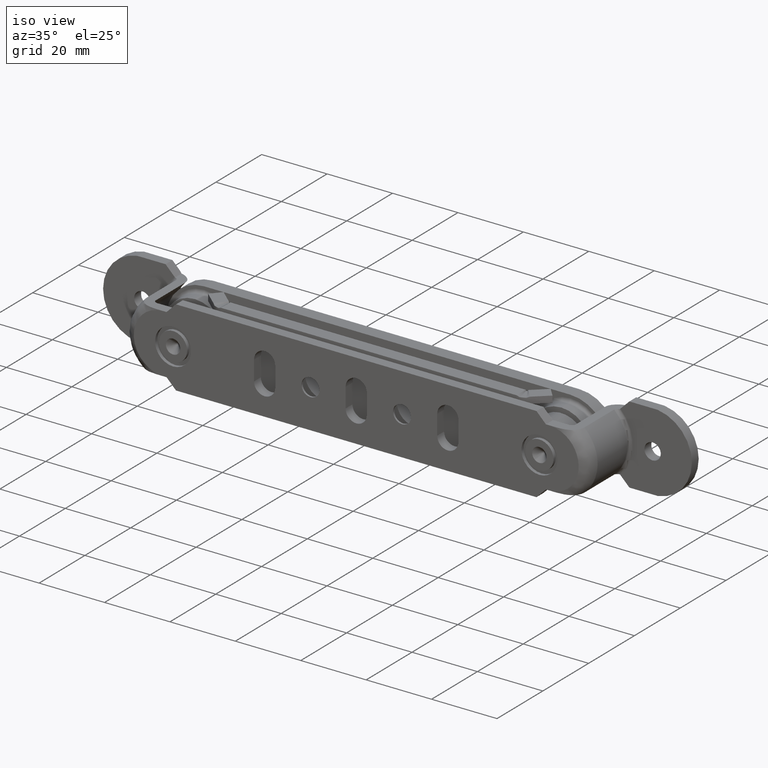
[diagram: clean part render]
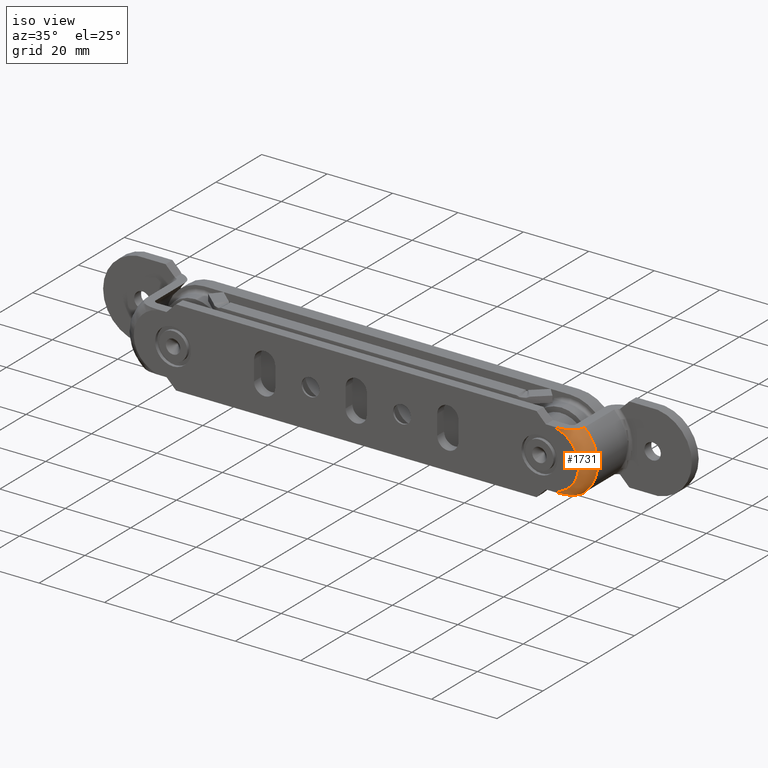
[diagram: same view with one face highlighted and labeled with its STEP entity id]
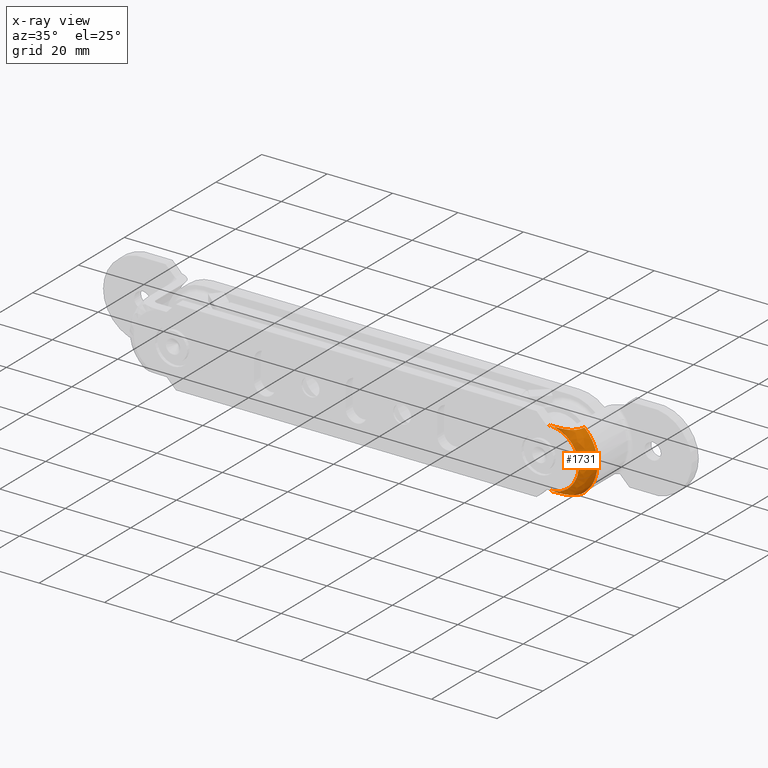
[diagram: x-ray of the same camera — body ghosted, the highlighted face saturated]
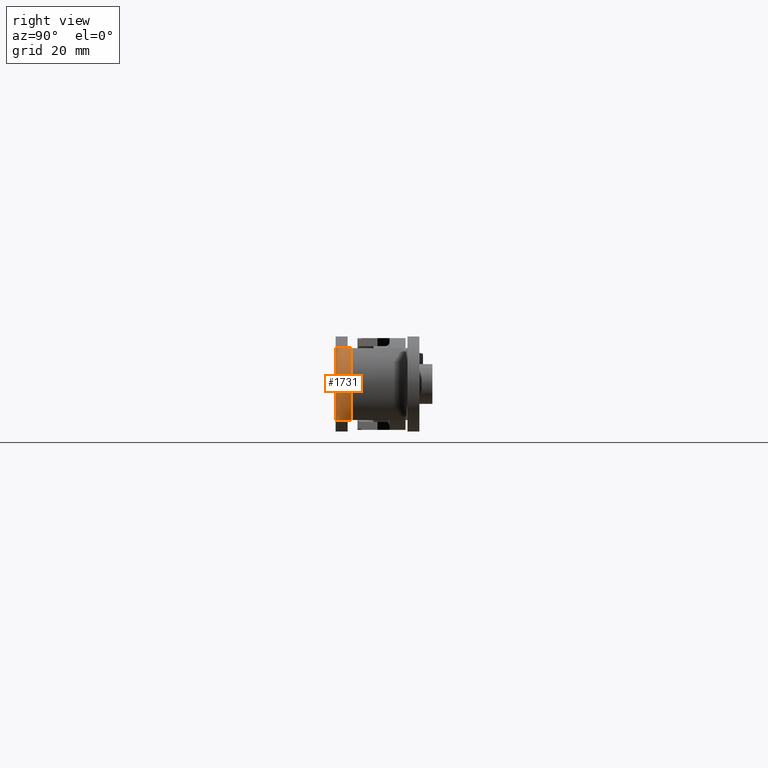
[diagram: same view with one face highlighted and labeled with its STEP entity id]
A machine part, iso view. The second image highlights one B-rep face of the part: STEP entity #1731.
The next image is the same camera in x-ray: the body ghosted, the highlighted face saturated — about 0% of this face is hidden behind the body in this view.
A second angle (right view) of the same face is appended — the face is thin or edge-on in the first view.
In plain terms, the highlighted face is a freeform B-spline surface patch.
Its self-contained STEP definition (entity closure, byte-faithful):
#2 = VERTEX_POINT ( 'NONE', #5579 ) ;
#150 = CARTESIAN_POINT ( 'NONE',  ( 58.82983901466672449, 3.999999999999997335, -12.12263065702895481 ) ) ;
#238 = CARTESIAN_POINT ( 'NONE',  ( 60.19571160249375197, 0.000000000000000000, -9.013858698171871353 ) ) ;
#284 = CARTESIAN_POINT ( 'NONE',  ( 60.19571160249827102, 0.000000000000000000, 9.013858698171862471 ) ) ;
#334 = CARTESIAN_POINT ( 'NONE',  ( 66.86148265535459245, 3.161314814079910551, 8.999999999999968026 ) ) ;
#358 = CARTESIAN_POINT ( 'NONE',  ( 66.63074449377211295, 2.063901716710476627E-26, -4.944806703775358692 ) ) ;
#361 = B_SPLINE_CURVE_WITH_KNOTS ( 'NONE', 3,
 ( #4771, #7583, #2633, #3354, #613, #6899, #1206, #6758, #3312, #6127 ),
 .UNSPECIFIED., .F., .F.,
 ( 4, 2, 2, 2, 4 ),
 ( 0.000000000000000000, 0.2453195675377440876, 0.4999994024118706859, 0.7546792372859972842, 1.000000000000000000 ),
 .UNSPECIFIED. ) ;
#380 = CARTESIAN_POINT ( 'NONE',  ( 66.24152541394676064, 1.895858301874878471, 9.000015595902709720 ) ) ;
#445 = CARTESIAN_POINT ( 'NONE',  ( 68.00000000000032685, 2.063901716710476627E-26, 1.295906966939364358 ) ) ;
#470 = CARTESIAN_POINT ( 'NONE',  ( 66.39133890173248176, 2.112523196620436305, 9.000037664157138906 ) ) ;
#492 = CARTESIAN_POINT ( 'NONE',  ( 59.82218478080638135, -1.249353701446252122E-25, 8.999328210712842946 ) ) ;
#546 = CARTESIAN_POINT ( 'NONE',  ( 63.46197034889392086, 0.2503412271829894009, -8.999903584306439441 ) ) ;
#599 = CARTESIAN_POINT ( 'NONE',  ( 66.93725038335081479, 4.000000000000000000, -8.999995976618132332 ) ) ;
#613 = CARTESIAN_POINT ( 'NONE',  ( 70.99999999999998579, 3.999999999999995559, -1.727875955919077056 ) ) ;
#630 = CARTESIAN_POINT ( 'NONE',  ( 63.56388258241338463, 0.2735179203882437404, -8.999921461395892663 ) ) ;
#647 = EDGE_CURVE ( 'NONE', #2644, #2, #6600, .T. ) ;
#675 = CARTESIAN_POINT ( 'NONE',  ( 61.90593974958166257, 0.04233087583990526731, -9.000000000000007105 ) ) ;
#736 = CARTESIAN_POINT ( 'NONE',  ( 60.59428213665757568, 3.999999999999997335, -12.01847826423136567 ) ) ;
#775 = CARTESIAN_POINT ( 'NONE',  ( 71.00000000000001421, 3.999999999999997335, -1.727875955919077056 ) ) ;
#829 = CARTESIAN_POINT ( 'NONE',  ( 62.69021649507758553, 0.000000000000000000, -8.310335557993781208 ) ) ;
#870 = CARTESIAN_POINT ( 'NONE',  ( 58.82983901466401022, 3.999999999999997335, 12.12263065702852494 ) ) ;
#917 = CARTESIAN_POINT ( 'NONE',  ( 65.47948939527414325, -5.620100607150930550E-13, 10.24703725452932090 ) ) ;
#968 = CARTESIAN_POINT ( 'NONE',  ( 63.85961704645559678, 0.000000000000000000, 7.685277940896432902 ) ) ;
#980 = CARTESIAN_POINT ( 'NONE',  ( 63.56483970053491817, 0.2605829227670746207, 8.999999999999996447 ) ) ;
#1022 = CARTESIAN_POINT ( 'NONE',  ( 62.00791992676006004, 0.05320393769206185203, 8.999915259068584916 ) ) ;
#1040 = CARTESIAN_POINT ( 'NONE',  ( 60.64802684624405060, -5.213595563390065040E-26, 8.886292606168257890 ) ) ;
#1083 = CARTESIAN_POINT ( 'NONE',  ( 58.99627897886159644, 0.000000000000000000, 8.999832052678133465 ) ) ;
#1171 = CARTESIAN_POINT ( 'NONE',  ( 62.69021649507326543, 1.348225810565946769E-25, 8.310335557994054767 ) ) ;
#1206 = CARTESIAN_POINT ( 'NONE',  ( 70.62111018010490682, 3.999999999999995559, 3.454758095861153677 ) ) ;
#1220 = CARTESIAN_POINT ( 'NONE',  ( 60.64802684624113738, 9.359021182132724620E-26, -8.886292606168272101 ) ) ;
#1223 = CARTESIAN_POINT ( 'NONE',  ( 60.64744844372212640, 0.004410451363088241025, -8.999516341959141741 ) ) ;
#1316 = CARTESIAN_POINT ( 'NONE',  ( 61.28000420135872162, 0.01794271512403050606, -8.999941810766777905 ) ) ;
#1443 = CARTESIAN_POINT ( 'NONE',  ( 66.93725038335081479, 4.000000000000000000, -8.999995976618132332 ) ) ;
#1462 = CARTESIAN_POINT ( 'NONE',  ( 70.62111018010314467, 0.000000000000000000, -3.454758095863973200 ) ) ;
#1506 = CARTESIAN_POINT ( 'NONE',  ( 63.92028866010046073, -1.122285397954208091E-12, -11.08044741065987004 ) ) ;
#1550 = CARTESIAN_POINT ( 'NONE',  ( 60.59428213666134155, 1.125754844906160898E-12, -12.01847826422765486 ) ) ;
#1644 = CARTESIAN_POINT ( 'NONE',  ( 66.63074449377185715, 0.000000000000000000, 4.944806703775151746 ) ) ;
#1657 = CARTESIAN_POINT ( 'NONE',  ( 61.90467792480876597, 0.04639041758854967751, 8.999931933158798358 ) ) ;
#1731 = ADVANCED_FACE ( 'NONE', ( #6975 ), #2895, .F. ) ;
#1740 = CARTESIAN_POINT ( 'NONE',  ( 63.15412727634170409, 0.1802346272111595427, 9.000000000000000000 ) ) ;
#1784 = ORIENTED_EDGE ( 'NONE', *, *, #1859, .T. ) ;
#1827 = EDGE_CURVE ( 'NONE', #2350, #5560, #361, .T. ) ;
#1859 = EDGE_CURVE ( 'NONE', #5560, #2644, #3805, .T. ) ;
#1893 = CARTESIAN_POINT ( 'NONE',  ( 58.99627897886185224, 0.000000000000000000, -9.000000000000001776 ) ) ;
#1895 = CARTESIAN_POINT ( 'NONE',  ( 62.94730166962835227, 0.1531425506540319836, -9.000000000000000000 ) ) ;
#2034 = CARTESIAN_POINT ( 'NONE',  ( 64.38635201963586496, 0.5102501756586628190, -9.000000000000001776 ) ) ;
#2074 = CARTESIAN_POINT ( 'NONE',  ( 60.43957559562711879, 0.002616476629980539481, -8.999428771149760919 ) ) ;
#2141 = CARTESIAN_POINT ( 'NONE',  ( 65.47948939527029211, 3.999999999999997335, 10.24703725452369696 ) ) ;
#2180 = CARTESIAN_POINT ( 'NONE',  ( 63.92028866010422661, 3.999999999999997335, -11.08044741065616812 ) ) ;
#2219 = CARTESIAN_POINT ( 'NONE',  ( 66.63074449377184294, 0.000000000000000000, -4.944806703775191714 ) ) ;
#2247 = CARTESIAN_POINT ( 'NONE',  ( 66.21340521418400726, 1.848980551975219155, -9.000000000000000000 ) ) ;
#2271 = CARTESIAN_POINT ( 'NONE',  ( 71.00000000000000000, 0.000000000000000000, 1.727875955919093043 ) ) ;
#2313 = CARTESIAN_POINT ( 'NONE',  ( 65.83044782348767399, 0.000000000000000000, 6.002029439904141839 ) ) ;
#2324 = CARTESIAN_POINT ( 'NONE',  ( 64.37611568199751844, 0.5226060553400028175, 8.999772213244277452 ) ) ;
#2350 = VERTEX_POINT ( 'NONE', #599 ) ;
#2415 = CARTESIAN_POINT ( 'NONE',  ( 64.47574860772574823, 0.5624062415973377638, 8.999674028431057238 ) ) ;
#2431 = CARTESIAN_POINT ( 'NONE',  ( 59.82218478080559976, 7.352724279412131273E-26, -8.999328210713068543 ) ) ;
#2455 = CARTESIAN_POINT ( 'NONE',  ( 62.31832493353043390, 0.07717258691542608351, 8.999912941978918113 ) ) ;
#2490 = CARTESIAN_POINT ( 'NONE',  ( 61.06310189977546088, 0.008220459339664863349, 9.000000000000007105 ) ) ;
#2562 = CARTESIAN_POINT ( 'NONE',  ( 65.83044782348788715, 7.773079911184959099E-26, 6.002029439904346120 ) ) ;
#2606 = CARTESIAN_POINT ( 'NONE',  ( 65.48152720571420105, 1.125003158610532905, -8.999520116823067184 ) ) ;
#2633 = CARTESIAN_POINT ( 'NONE',  ( 69.20091287634160437, 3.999999999999995559, -6.535404194011755763 ) ) ;
#2644 = VERTEX_POINT ( 'NONE', #4700 ) ;
#2699 = CARTESIAN_POINT ( 'NONE',  ( 63.79159592698542269, 0.3317827886161272555, -8.999977441642196041 ) ) ;
#2810 = CARTESIAN_POINT ( 'NONE',  ( 69.17432599169836749, 3.999999999999997335, -6.593075605034147912 ) ) ;
#2852 = CARTESIAN_POINT ( 'NONE',  ( 68.10726376465022724, 5.620100607150917423E-13, 8.002705919871436535 ) ) ;
#2879 = CARTESIAN_POINT ( 'NONE',  ( 66.55037097870967955, 2.380911191680523231, -9.000039244607455302 ) ) ;
#2895 =( BOUNDED_SURFACE ( )  B_SPLINE_SURFACE ( 2, 3, ( 
 ( #4348, #150, #736, #2180, #6252, #7706, #2810, #4935, #775, #3483, #6341, #7066, #8341, #2141, #5701, #8473, #870, #7755 ),
 ( #7660, #8517, #1550, #1506, #7113, #3619, #2988, #1462, #3528, #2271, #6298, #5658, #2852, #917, #5619, #4259, #3662, #7019 ),
 ( #5751, #6428, #238, #829, #2897, #8426, #2219, #4982, #4853, #7622, #3705, #1644, #2313, #968, #6471, #284, #3026, #7159 ) ),
 .UNSPECIFIED., .F., .F., .F. ) 
 B_SPLINE_SURFACE_WITH_KNOTS ( ( 3, 3 ),
 ( 4, 2, 2, 2, 2, 2, 2, 2, 4 ),
 ( 0.000000000000000000, 1.000000000000000000 ),
 ( 2.984513020910303460, 3.416482010778899792, 3.848451000647496567, 4.280419990516093343, 4.712388980384689674, 5.144357970253286005, 5.576326960121882337, 6.008295949990479556, 6.440264939859075888 ),
 .UNSPECIFIED. ) 
 GEOMETRIC_REPRESENTATION_ITEM ( )  RATIONAL_B_SPLINE_SURFACE ( (
 ( 1.000000000000000000, 1.000000000000000000, 1.000000000000000000, 1.000000000000000000, 1.000000000000000000, 1.000000000000000000, 1.000000000000000000, 1.000000000000000000, 1.000000000000000000, 1.000000000000000000, 1.000000000000000000, 1.000000000000000000, 1.000000000000000000, 1.000000000000000000, 1.000000000000000000, 1.000000000000000000, 1.000000000000000000, 1.000000000000000000),
 ( 0.7071067811865477948, 0.7071067811865477948, 0.7071067811865480168, 0.7071067811865480168, 0.7071067811865477948, 0.7071067811865477948, 0.7071067811865477948, 0.7071067811865477948, 0.7071067811865477948, 0.7071067811865477948, 0.7071067811865477948, 0.7071067811865477948, 0.7071067811865477948, 0.7071067811865477948, 0.7071067811865477948, 0.7071067811865477948, 0.7071067811865477948, 0.7071067811865477948),
 ( 1.000000000000000000, 1.000000000000000000, 1.000000000000000000, 1.000000000000000000, 1.000000000000000000, 1.000000000000000000, 1.000000000000000000, 1.000000000000000000, 1.000000000000000000, 1.000000000000000000, 1.000000000000000000, 1.000000000000000000, 1.000000000000000000, 1.000000000000000000, 1.000000000000000000, 1.000000000000000000, 1.000000000000000000, 1.000000000000000000) ) ) 
 REPRESENTATION_ITEM ( '' )  SURFACE ( )  );
#2897 = CARTESIAN_POINT ( 'NONE',  ( 63.85961704644661552, 0.000000000000000000, -7.685277940896417803 ) ) ;
#2921 = CARTESIAN_POINT ( 'NONE',  ( 66.00857285989172851, 1.612249619673007839, -8.999989842804538398 ) ) ;
#2967 = CARTESIAN_POINT ( 'NONE',  ( 65.79367512701875853, 1.392753409730057346, -8.999837988060749083 ) ) ;
#2988 = CARTESIAN_POINT ( 'NONE',  ( 69.17432599169879381, 0.000000000000000000, -6.593075605034336206 ) ) ;
#3026 = CARTESIAN_POINT ( 'NONE',  ( 58.87237926099701468, 0.000000000000000000, 9.091972992768083017 ) ) ;
#3084 = CARTESIAN_POINT ( 'NONE',  ( 66.93722149341813576, 3.582845155505268497, 8.999999999999939604 ) ) ;
#3166 = CARTESIAN_POINT ( 'NONE',  ( 66.64272446478827305, 2.573971288020180825, 8.999999999999968026 ) ) ;
#3235 = CARTESIAN_POINT ( 'NONE',  ( 63.85961704645576020, -3.645276477764019047E-26, 7.685277940896694915 ) ) ;
#3280 = CARTESIAN_POINT ( 'NONE',  ( 63.86699129439392664, 0.3531692518742276521, -8.999991345997193193 ) ) ;
#3312 = CARTESIAN_POINT ( 'NONE',  ( 68.18522528069199495, 3.999999999999995559, 7.898887215802787409 ) ) ;
#3329 = CARTESIAN_POINT ( 'NONE',  ( 61.06771287729507947, 0.01202978637080304343, -8.999809582184752799 ) ) ;
#3354 = CARTESIAN_POINT ( 'NONE',  ( 70.62111018010352836, 3.999999999999995559, -3.454758095864163714 ) ) ;
#3370 = CARTESIAN_POINT ( 'NONE',  ( 63.71584318735084906, 0.3117785172423842011, -8.999957608777606310 ) ) ;
#3483 = CARTESIAN_POINT ( 'NONE',  ( 71.00000000000001421, 3.999999999999997335, 1.727875955919093931 ) ) ;
#3528 = CARTESIAN_POINT ( 'NONE',  ( 71.00000000000000000, 0.000000000000000000, -1.727875955919076167 ) ) ;
#3597 = B_SPLINE_CURVE_WITH_KNOTS ( 'NONE', 3,
 ( #4741, #6870, #4151, #2074, #1223, #6911, #3329, #6096, #1316, #5330, #4055, #675, #8097, #1895, #3968, #546, #630, #3370, #2699, #3280, #6054, #8235, #2034, #4786, #6192, #2606, #8499, #2967, #4915, #4236, #2921, #7643, #2247, #5679, #2879, #8326, #7827, #7686, #1443 ),
 .UNSPECIFIED., .F., .F.,
 ( 4, 2, 2, 2, 2, 2, 2, 2, 2, 1, 2, 2, 2, 2, 2, 2, 2, 2, 2, 4 ),
 ( 0.000000000000000000, 0.1249999999999960032, 0.1874999999999929501, 0.2187499999999914235, 0.2343749999999896472, 0.2499999999999878708, 0.3749999999999799050, 0.4374999999999789613, 0.4687499999999805156, 0.4843749999999812927, 0.4921874999999817368, 0.4999999999999821254, 0.6249999999999958922, 0.6875000000000009992, 0.7187500000000035527, 0.7343750000000033307, 0.7500000000000032196, 0.8125000000000024425, 0.8750000000000016653, 1.000000000000000000 ),
 .UNSPECIFIED. ) ;
#3619 = CARTESIAN_POINT ( 'NONE',  ( 68.10726376465925114, 0.000000000000000000, -8.002705919871416995 ) ) ;
#3662 = CARTESIAN_POINT ( 'NONE',  ( 58.82983901466826637, -2.248632547532118497E-12, 12.12263065702306619 ) ) ;
#3705 = CARTESIAN_POINT ( 'NONE',  ( 67.71583263507962158, 0.000000000000000000, 2.591068571898505368 ) ) ;
#3717 = CARTESIAN_POINT ( 'NONE',  ( 58.99627897886159644, 0.000000000000000000, 8.999832052678133465 ) ) ;
#3759 = CARTESIAN_POINT ( 'NONE',  ( 66.10994811219281075, 1.728614197572701183, 9.000000000000005329 ) ) ;
#3780 = CARTESIAN_POINT ( 'NONE',  ( 67.71583263507990580, 2.063901716710476627E-26, -2.591068571898632822 ) ) ;
#3805 = B_SPLINE_CURVE_WITH_KNOTS ( 'NONE', 3,
 ( #7901, #3084, #334, #3166, #7170, #470, #7217, #380, #8617, #6482, #3759, #5936, #8576, #7297, #5893, #2415, #2324, #4413, #6566, #4456, #8709, #7856, #980, #1740, #5803, #2455, #1022, #1657, #5086, #6521, #5849, #5217, #2490, #5174, #3851, #5763, #3717 ),
 .UNSPECIFIED., .F., .F.,
 ( 4, 2, 2, 2, 2, 2, 2, 2, 2, 1, 2, 2, 2, 2, 2, 2, 2, 2, 4 ),
 ( 0.000000000000000000, 0.1249999999999971412, 0.1874999999999957256, 0.2187499999999939493, 0.2343749999999930056, 0.2499999999999920619, 0.3749999999999875100, 0.4374999999999852340, 0.4687499999999840683, 0.4843749999999834577, 0.4921874999999831801, 0.4999999999999829026, 0.6249999999999901190, 0.6874999999999957812, 0.7187499999999986677, 0.7343750000000001110, 0.7500000000000014433, 0.8750000000000007772, 1.000000000000000000 ),
 .UNSPECIFIED. ) ;
#3826 = CARTESIAN_POINT ( 'NONE',  ( 67.71583263507992001, 2.063901716710476627E-26, 2.591068571898593742 ) ) ;
#3851 = CARTESIAN_POINT ( 'NONE',  ( 59.81859115957384176, -0.0005175030893601944779, 8.999478887012113404 ) ) ;
#3968 = CARTESIAN_POINT ( 'NONE',  ( 63.15452451042872895, 0.1870433409549561443, -8.999904216209786867 ) ) ;
#4055 = CARTESIAN_POINT ( 'NONE',  ( 61.44248263962831658, 0.02355888353860834464, -9.000000000000007105 ) ) ;
#4151 = CARTESIAN_POINT ( 'NONE',  ( 59.81903803089186766, -0.0005186347560790136556, -8.999477526541449279 ) ) ;
#4236 = CARTESIAN_POINT ( 'NONE',  ( 65.93874830690207034, 1.537453055737041829, -8.999954308999978281 ) ) ;
#4259 = CARTESIAN_POINT ( 'NONE',  ( 60.59428213665686513, -1.124020121430183889E-12, 12.01847826423101750 ) ) ;
#4348 = CARTESIAN_POINT ( 'NONE',  ( 57.12278641951722591, 3.999999999999997335, -11.85226008714165324 ) ) ;
#4413 = CARTESIAN_POINT ( 'NONE',  ( 64.22395246853258755, 0.4669522575692998112, 8.999894408371959642 ) ) ;
#4456 = CARTESIAN_POINT ( 'NONE',  ( 64.06945025465444132, 0.4147931276050092486, 8.999981000097687200 ) ) ;
#4487 = EDGE_CURVE ( 'NONE', #2, #2350, #3597, .T. ) ;
#4700 = CARTESIAN_POINT ( 'NONE',  ( 58.99627897886159644, 0.000000000000000000, 8.999832052678133465 ) ) ;
#4741 = CARTESIAN_POINT ( 'NONE',  ( 58.99627897886185224, 0.000000000000000000, -9.000000000000001776 ) ) ;
#4771 = CARTESIAN_POINT ( 'NONE',  ( 66.93725038335081479, 4.000000000000000000, -8.999995976618132332 ) ) ;
#4786 = CARTESIAN_POINT ( 'NONE',  ( 64.77911216076921619, 0.6788378401440097187, -8.999296882806728348 ) ) ;
#4853 = CARTESIAN_POINT ( 'NONE',  ( 68.00000000000000000, 0.000000000000000000, -1.295906966939307514 ) ) ;
#4915 = CARTESIAN_POINT ( 'NONE',  ( 65.90304819048479601, 1.500745593784038379, -8.999928939892981816 ) ) ;
#4935 = CARTESIAN_POINT ( 'NONE',  ( 70.62111018010355679, 3.999999999999997335, -3.454758095864163714 ) ) ;
#4982 = CARTESIAN_POINT ( 'NONE',  ( 67.71583263507960737, 0.000000000000000000, -2.591068571898544448 ) ) ;
#5073 = ORIENTED_EDGE ( 'NONE', *, *, #4487, .T. ) ;
#5086 = CARTESIAN_POINT ( 'NONE',  ( 61.75002635594717049, 0.03759539532958634800, 8.999963750691451381 ) ) ;
#5174 = CARTESIAN_POINT ( 'NONE',  ( 60.64552492179617360, 0.003653704886843352033, 8.999414088635976583 ) ) ;
#5217 = CARTESIAN_POINT ( 'NONE',  ( 61.54629161601201304, 0.02776012645050105615, 9.000000000000005329 ) ) ;
#5283 = CARTESIAN_POINT ( 'NONE',  ( 63.85961704644678605, 2.063901716710476627E-26, -7.685277940896679816 ) ) ;
#5328 = CARTESIAN_POINT ( 'NONE',  ( 66.63074449377212716, 2.063901716710476627E-26, 4.944806703775318724 ) ) ;
#5330 = CARTESIAN_POINT ( 'NONE',  ( 61.38672667299267971, 0.02150429228687595479, -8.999986068378829529 ) ) ;
#5560 = VERTEX_POINT ( 'NONE', #6173 ) ;
#5579 = CARTESIAN_POINT ( 'NONE',  ( 58.99627897886185224, 0.000000000000000000, -9.000000000000001776 ) ) ;
#5581 = ORIENTED_EDGE ( 'NONE', *, *, #647, .T. ) ;
#5619 = CARTESIAN_POINT ( 'NONE',  ( 63.92028866010499399, 1.124020121430186110E-12, 11.08044741065648786 ) ) ;
#5658 = CARTESIAN_POINT ( 'NONE',  ( 69.17432599168981255, 0.000000000000000000, 6.593075605033720699 ) ) ;
#5679 = CARTESIAN_POINT ( 'NONE',  ( 66.33653990391684374, 2.020256656006593765, -9.000036407726915044 ) ) ;
#5701 = CARTESIAN_POINT ( 'NONE',  ( 63.92028866010038257, 3.999999999999997335, 11.08044741065724459 ) ) ;
#5751 = CARTESIAN_POINT ( 'NONE',  ( 57.59208981463791588, 0.000000000000000000, -8.889195065356240377 ) ) ;
#5763 = CARTESIAN_POINT ( 'NONE',  ( 59.40920840010944204, 1.003078351083856983E-07, 8.999999999999998224 ) ) ;
#5803 = CARTESIAN_POINT ( 'NONE',  ( 62.52618320126564555, 0.09782891359369522144, 9.000000000000001776 ) ) ;
#5849 = CARTESIAN_POINT ( 'NONE',  ( 61.59552743242748818, 0.02993890774566243529, 8.999993302447640176 ) ) ;
#5893 = CARTESIAN_POINT ( 'NONE',  ( 64.76876091197010510, 0.6903033907107473111, 8.999420291404847561 ) ) ;
#5936 = CARTESIAN_POINT ( 'NONE',  ( 65.80989914035774291, 1.379288046104795606, 9.000000000000007105 ) ) ;
#6054 = CARTESIAN_POINT ( 'NONE',  ( 63.91717322587364691, 0.3677419107658097541, -8.999997982314740241 ) ) ;
#6096 = CARTESIAN_POINT ( 'NONE',  ( 61.22681424391414140, 0.01634567463427855777, -8.999911476095093121 ) ) ;
#6127 = CARTESIAN_POINT ( 'NONE',  ( 66.93724582324988148, 4.000000000000000000, 8.999999999999998224 ) ) ;
#6173 = CARTESIAN_POINT ( 'NONE',  ( 66.93724582324988148, 4.000000000000000000, 8.999999999999998224 ) ) ;
#6192 = CARTESIAN_POINT ( 'NONE',  ( 65.31291925512705632, 1.004461423845873558, -8.999374107892252894 ) ) ;
#6252 = CARTESIAN_POINT ( 'NONE',  ( 65.47948939526456513, 3.999999999999997335, -10.24703725452859615 ) ) ;
#6298 = CARTESIAN_POINT ( 'NONE',  ( 70.62111018011216856, 0.000000000000000000, 3.454758095864483902 ) ) ;
#6341 = CARTESIAN_POINT ( 'NONE',  ( 70.62111018010493524, 3.999999999999997335, 3.454758095861153677 ) ) ;
#6428 = CARTESIAN_POINT ( 'NONE',  ( 58.87237926100033292, 0.000000000000000000, -9.091972992768608819 ) ) ;
#6471 = CARTESIAN_POINT ( 'NONE',  ( 62.69021649507311622, 0.000000000000000000, 8.310335557993772326 ) ) ;
#6482 = CARTESIAN_POINT ( 'NONE',  ( 66.14459812877619527, 1.770708348058339876, 9.000002790985231371 ) ) ;
#6521 = CARTESIAN_POINT ( 'NONE',  ( 61.69851092570188911, 0.03490169560368212159, 8.999975177528936499 ) ) ;
#6566 = CARTESIAN_POINT ( 'NONE',  ( 64.14719181427318517, 0.4401362677149791569, 8.999948840650475290 ) ) ;
#6600 = B_SPLINE_CURVE_WITH_KNOTS ( 'NONE', 3,
 ( #1083, #492, #1040, #1171, #3235, #2562, #5328, #3826, #445, #8095, #3780, #358, #6725, #5283, #7235, #1220, #2431, #1893 ),
 .UNSPECIFIED., .F., .F.,
 ( 4, 2, 2, 2, 2, 2, 2, 2, 4 ),
 ( 0.000000000000000000, 0.08761193808473884126, 0.2250746253898257554, 0.3625373126949124059, 0.4999999999999990008, 0.6374626873050855957, 0.7749253746101724127, 0.9123880619152592297, 1.000000000000000000 ),
 .UNSPECIFIED. ) ;
#6725 = CARTESIAN_POINT ( 'NONE',  ( 65.83044782349691104, 2.063901716710476627E-26, -6.002029439904331909 ) ) ;
#6758 = CARTESIAN_POINT ( 'NONE',  ( 69.20090948156408217, 3.999999999999995559, 6.535411557853511688 ) ) ;
#6870 = CARTESIAN_POINT ( 'NONE',  ( 59.40943546720301072, 1.003078375984257513E-07, -9.000000000000280664 ) ) ;
#6899 = CARTESIAN_POINT ( 'NONE',  ( 70.99999999999998579, 3.999999999999995559, 1.727875955919093931 ) ) ;
#6911 = CARTESIAN_POINT ( 'NONE',  ( 60.96227004040182607, 0.009784104862341359843, -8.999728027650798268 ) ) ;
#6975 = FACE_OUTER_BOUND ( 'NONE', #8346, .T. ) ;
#7019 = CARTESIAN_POINT ( 'NONE',  ( 57.12278641951724012, 0.000000000000000000, 11.85226008714165502 ) ) ;
#7066 = CARTESIAN_POINT ( 'NONE',  ( 69.17432599169704588, 3.999999999999997335, 6.593075605037054920 ) ) ;
#7113 = CARTESIAN_POINT ( 'NONE',  ( 65.47948939526516199, 0.000000000000000000, -10.24703725452930492 ) ) ;
#7159 = CARTESIAN_POINT ( 'NONE',  ( 57.59208981463793009, 0.000000000000000000, 8.889195065356243930 ) ) ;
#7170 = CARTESIAN_POINT ( 'NONE',  ( 66.55197618713185648, 2.383946902460834849, 9.000039824510720265 ) ) ;
#7217 = CARTESIAN_POINT ( 'NONE',  ( 66.33371759462717421, 2.024305565806248541, 9.000029804149257018 ) ) ;
#7235 = CARTESIAN_POINT ( 'NONE',  ( 62.69021649507773475, -9.336832486916968819E-26, -8.310335557994061872 ) ) ;
#7297 = CARTESIAN_POINT ( 'NONE',  ( 64.95627650889878169, 0.7869402778036379553, 8.999318641849763267 ) ) ;
#7583 = CARTESIAN_POINT ( 'NONE',  ( 68.18523517729732930, 3.999999999999995559, -7.898873930382216635 ) ) ;
#7622 = CARTESIAN_POINT ( 'NONE',  ( 68.00000000000000000, 0.000000000000000000, 1.295906966939320171 ) ) ;
#7643 = CARTESIAN_POINT ( 'NONE',  ( 66.04165347717383838, 1.649124117295179826, -9.000000000000001776 ) ) ;
#7660 = CARTESIAN_POINT ( 'NONE',  ( 57.12278641951721880, 0.000000000000000000, -11.85226008714164969 ) ) ;
#7686 = CARTESIAN_POINT ( 'NONE',  ( 66.93722149341822103, 3.581306360397289890, -8.999999999999987566 ) ) ;
#7706 = CARTESIAN_POINT ( 'NONE',  ( 68.10726376465984799, 3.999999999999997335, -8.002705919872132867 ) ) ;
#7755 = CARTESIAN_POINT ( 'NONE',  ( 57.12278641951724012, 3.999999999999997335, 11.85226008714165857 ) ) ;
#7827 = CARTESIAN_POINT ( 'NONE',  ( 66.86100879306950162, 3.158457073108308144, -8.999999999999976907 ) ) ;
#7856 = CARTESIAN_POINT ( 'NONE',  ( 63.99006014255355268, 0.3897236771014367940, 8.999999999999998224 ) ) ;
#7901 = CARTESIAN_POINT ( 'NONE',  ( 66.93724582324988148, 4.000000000000000000, 8.999999999999998224 ) ) ;
#8095 = CARTESIAN_POINT ( 'NONE',  ( 68.00000000000032685, 2.063901716710476627E-26, -1.295906966939351923 ) ) ;
#8097 = CARTESIAN_POINT ( 'NONE',  ( 62.31885274898441907, 0.07052186054116589553, -9.000000000000001776 ) ) ;
#8186 = ORIENTED_EDGE ( 'NONE', *, *, #1827, .T. ) ;
#8235 = CARTESIAN_POINT ( 'NONE',  ( 63.94103652199542864, 0.3748248114224802530, -9.000000000000005329 ) ) ;
#8326 = CARTESIAN_POINT ( 'NONE',  ( 66.64051114148256261, 2.568834785508938623, -8.999999999999975131 ) ) ;
#8341 = CARTESIAN_POINT ( 'NONE',  ( 68.10726376465409260, 3.999999999999997335, 8.002705919877067586 ) ) ;
#8346 = EDGE_LOOP ( 'NONE', ( #5073, #8186, #1784, #5581 ) ) ;
#8426 = CARTESIAN_POINT ( 'NONE',  ( 65.83044782349668367, 0.000000000000000000, -6.002029439904126740 ) ) ;
#8473 = CARTESIAN_POINT ( 'NONE',  ( 60.59428213666147656, 3.999999999999997335, 12.01847826423026611 ) ) ;
#8499 = CARTESIAN_POINT ( 'NONE',  ( 65.71772977721971642, 1.323602785308232610, -8.999757705515810002 ) ) ;
#8517 = CARTESIAN_POINT ( 'NONE',  ( 58.82983901466447918, 0.000000000000000000, -12.12263065702816256 ) ) ;
#8576 = CARTESIAN_POINT ( 'NONE',  ( 65.49080461361413086, 1.112898461199779421, 8.999396341600938598 ) ) ;
#8617 = CARTESIAN_POINT ( 'NONE',  ( 66.20983506793415074, 1.853688071892481304, 9.000010592760499861 ) ) ;
#8709 = CARTESIAN_POINT ( 'NONE',  ( 64.01740838662448141, 0.3982198342607217167, 8.999995853949553037 ) ) ;